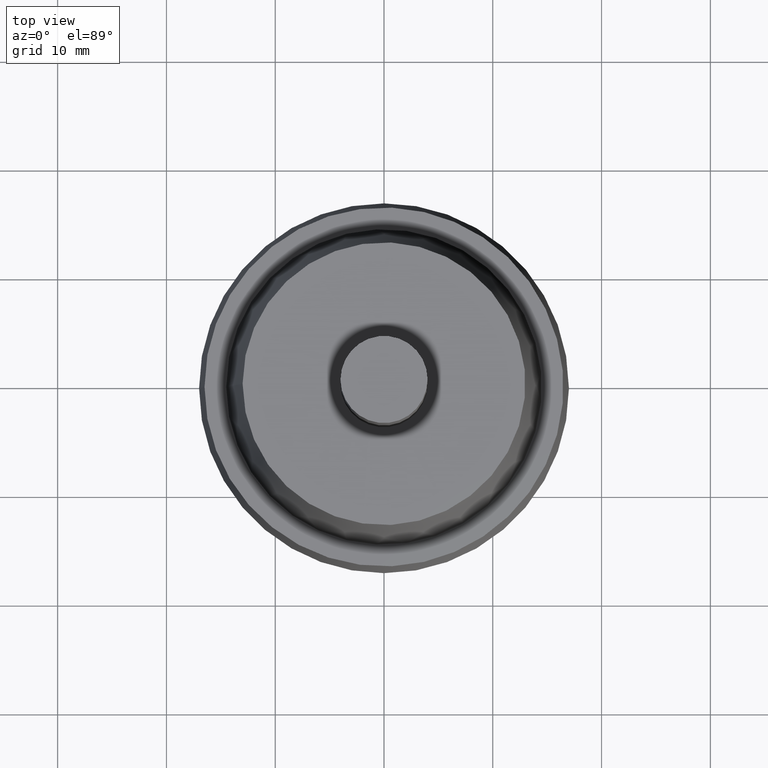
[diagram: clean part render]
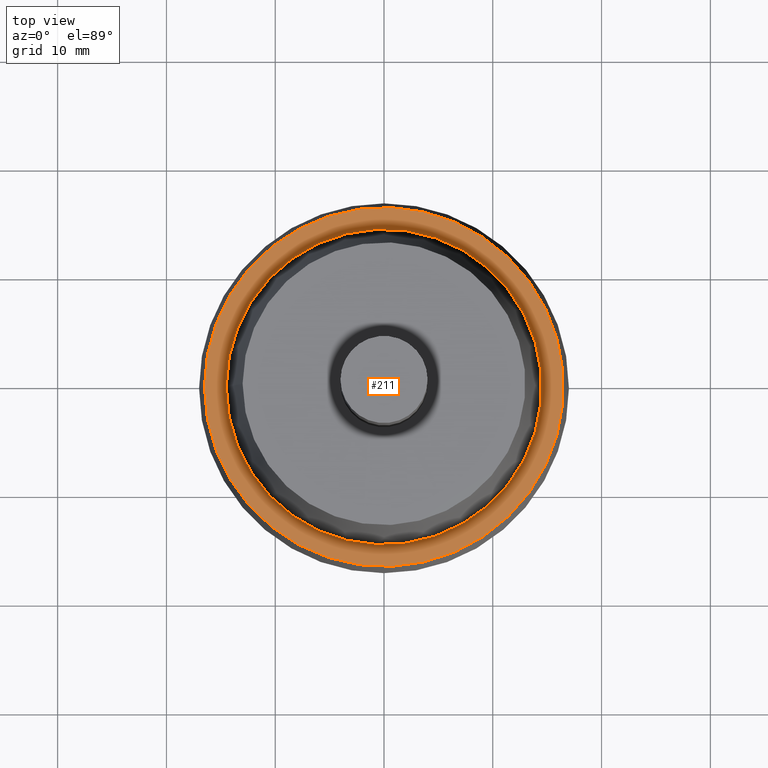
[diagram: same view with one face highlighted and labeled with its STEP entity id]
A machine part, top view. The second image highlights one B-rep face of the part: STEP entity #211.
In plain terms, the highlighted planar face has unit normal (0, 0, -1).
Its self-contained STEP definition (entity closure, byte-faithful):
#25=PLANE('',#249);
#40=FACE_BOUND('',#92,.T.);
#59=FACE_OUTER_BOUND('',#91,.T.);
#91=EDGE_LOOP('',(#181));
#92=EDGE_LOOP('',(#182));
#113=CIRCLE('',#245,14.5);
#116=CIRCLE('',#250,16.5);
#131=VERTEX_POINT('',#373);
#134=VERTEX_POINT('',#381);
#149=EDGE_CURVE('',#131,#131,#113,.T.);
#152=EDGE_CURVE('',#134,#134,#116,.T.);
#181=ORIENTED_EDGE('',*,*,#152,.F.);
#182=ORIENTED_EDGE('',*,*,#149,.T.);
#211=ADVANCED_FACE('',(#59,#40),#25,.F.);
#245=AXIS2_PLACEMENT_3D('',#374,#312,#313);
#249=AXIS2_PLACEMENT_3D('',#380,#320,#321);
#250=AXIS2_PLACEMENT_3D('',#382,#322,#323);
#312=DIRECTION('center_axis',(0.,0.,-1.));
#313=DIRECTION('ref_axis',(-1.,0.,0.));
#320=DIRECTION('center_axis',(0.,0.,-1.));
#321=DIRECTION('ref_axis',(-1.,0.,0.));
#322=DIRECTION('center_axis',(0.,0.,-1.));
#323=DIRECTION('ref_axis',(-1.,0.,0.));
#373=CARTESIAN_POINT('',(-14.5,0.,8.));
#374=CARTESIAN_POINT('Origin',(0.,0.,8.));
#380=CARTESIAN_POINT('Origin',(0.,0.,8.));
#381=CARTESIAN_POINT('',(-16.5,0.,8.));
#382=CARTESIAN_POINT('Origin',(0.,0.,8.));